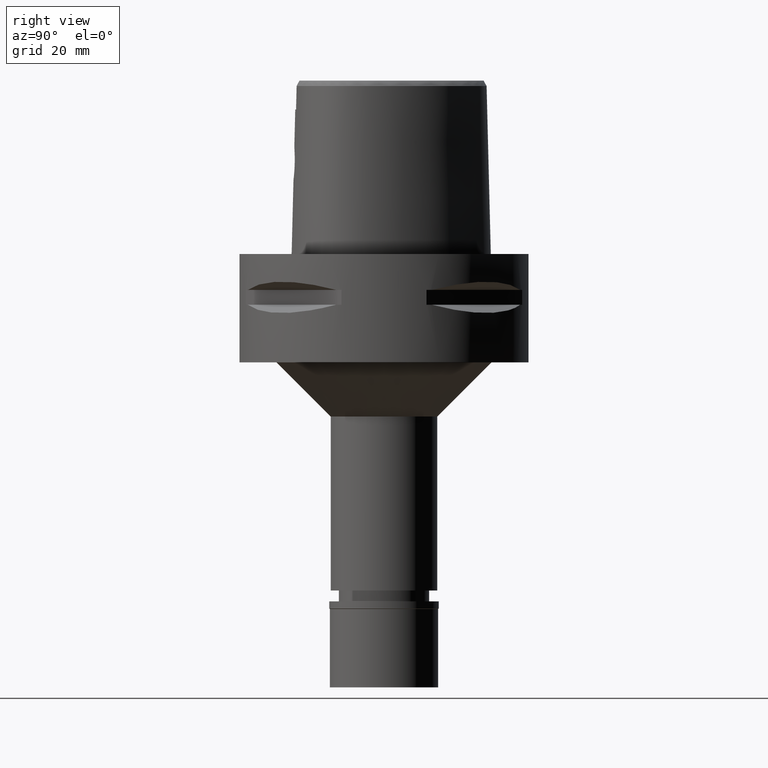
[diagram: clean part render]
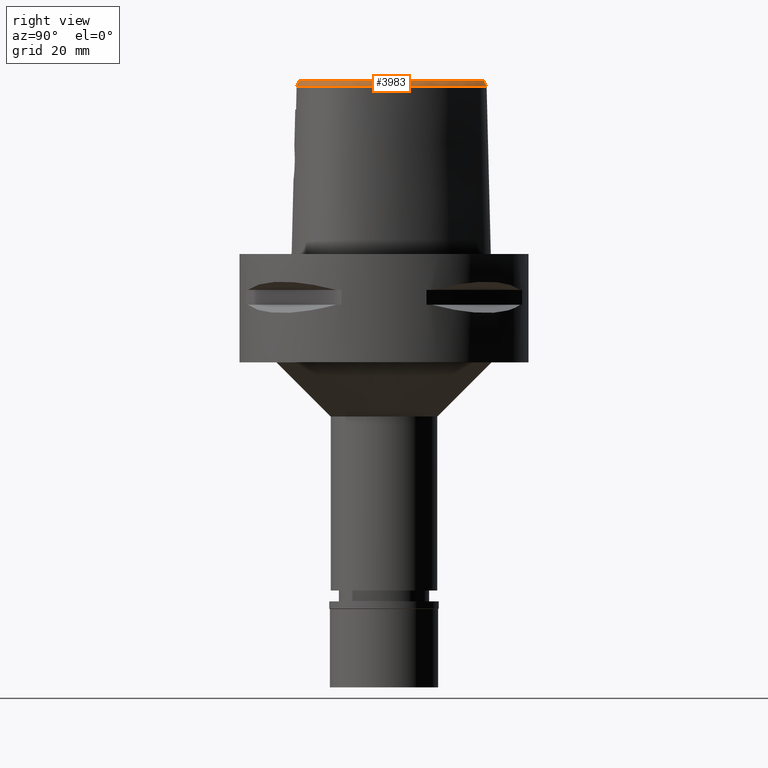
[diagram: same view with one face highlighted and labeled with its STEP entity id]
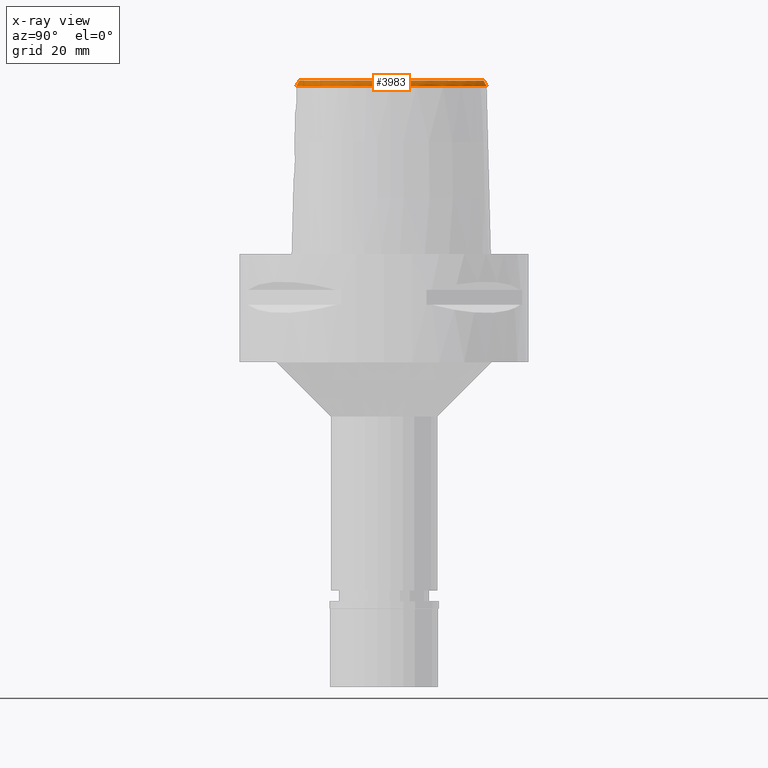
[diagram: x-ray of the same camera — body ghosted, the highlighted face saturated]
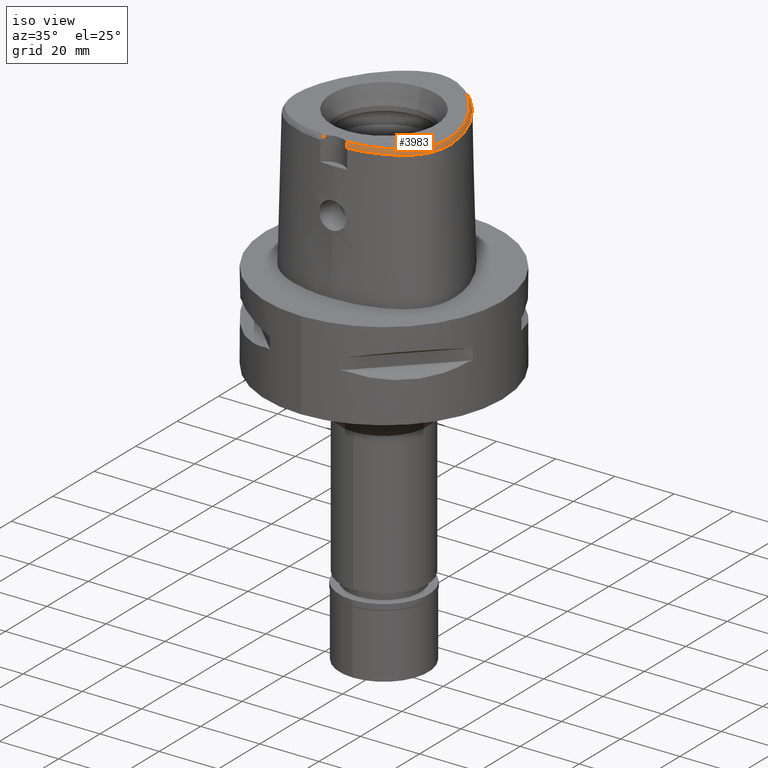
[diagram: same view with one face highlighted and labeled with its STEP entity id]
A machine part, right view. The second image highlights one B-rep face of the part: STEP entity #3983.
The next image is the same camera in x-ray: the body ghosted, the highlighted face saturated — about 0% of this face is hidden behind the body in this view.
A second angle (iso view) of the same face is appended — the face is thin or edge-on in the first view.
In plain terms, the highlighted face is a freeform B-spline surface patch.
Its self-contained STEP definition (entity closure, byte-faithful):
#6 = CARTESIAN_POINT ( 'NONE',  ( 17.04916357517999970, 17.81432664815000066, 46.94560124067000118 ) ) ;
#8 = CARTESIAN_POINT ( 'NONE',  ( 24.69258566271313171, -14.08975149522356674, 46.52069831738059946 ) ) ;
#31 = CARTESIAN_POINT ( 'NONE',  ( 4.798158824987999616, 27.69411010139999973, 46.31611650386000179 ) ) ;
#38 = CARTESIAN_POINT ( 'NONE',  ( 19.70597290391000200, -18.14721469963999922, 48.20457251342000404 ) ) ;
#67 = CARTESIAN_POINT ( 'NONE',  ( 18.00237281728000127, -19.26024203745999941, 48.20457252822000527 ) ) ;
#82 = CARTESIAN_POINT ( 'NONE',  ( 1.434828679256999973, 27.74636032488000126, 47.57508687387999657 ) ) ;
#90 = CARTESIAN_POINT ( 'NONE',  ( 18.89509812241999853, -18.70749386990999952, 48.20457245235999721 ) ) ;
#107 = CARTESIAN_POINT ( 'NONE',  ( 0.7474678804896999207, 28.51253883808000111, 46.31611580818000107 ) ) ;
#115 = CARTESIAN_POINT ( 'NONE',  ( 24.51722218023000011, -12.26769687950000076, 48.20457250191999776 ) ) ;
#138 = CARTESIAN_POINT ( 'NONE',  ( 23.90669155919999866, -13.53847843528999917, 48.20457253792000074 ) ) ;
#160 = CARTESIAN_POINT ( 'NONE',  ( 25.67350076966000216, -5.221281767241999994, 48.20457257559999675 ) ) ;
#185 = CARTESIAN_POINT ( 'NONE',  ( 25.53279090173000299, -8.304475519385999149, 48.20457254725999974 ) ) ;
#210 = CARTESIAN_POINT ( 'NONE',  ( 25.71874772741000115, 0.05820654227243999418, 46.94560192718000025 ) ) ;
#213 = CARTESIAN_POINT ( 'NONE',  ( 24.89096213678695690, -11.60991207239347034, 48.00000000000374456 ) ) ;
#240 = CARTESIAN_POINT ( 'NONE',  ( 25.35827285227000161, -10.93048610758000017, 47.57508705924000481 ) ) ;
#243 = ORIENTED_EDGE ( 'NONE', *, *, #4734, .T. ) ;
#244 = CARTESIAN_POINT ( 'NONE',  ( 2.897393261679457321, 27.25600202852620413, 48.00000000000191136 ) ) ;
#266 = CARTESIAN_POINT ( 'NONE',  ( 24.05592178790999824, 6.550852846379999761, 46.31611724407999731 ) ) ;
#268 = VERTEX_POINT ( 'NONE', #4237 ) ;
#269 = CARTESIAN_POINT ( 'NONE',  ( 25.41171405094332059, -1.468769615953199770, 48.00000000000672884 ) ) ;
#291 = CARTESIAN_POINT ( 'NONE',  ( 8.965931139553001472, 24.43079782042000048, 48.20457255846000066 ) ) ;
#298 = CARTESIAN_POINT ( 'NONE',  ( 7.493341079626000045, -23.57767691268000121, 46.94560153671000791 ) ) ;
#316 = CARTESIAN_POINT ( 'NONE',  ( 7.387810477443999879, 26.18426560694999949, 46.94560202451000208 ) ) ;
#319 = CARTESIAN_POINT ( 'NONE',  ( 5.628119991152683355, -23.25222728396649785, 48.00000000000427747 ) ) ;
#342 = CARTESIAN_POINT ( 'NONE',  ( 11.67036048918000013, 23.76609588279000107, 46.31611589140999996 ) ) ;
#346 = CARTESIAN_POINT ( 'NONE',  ( 23.08984995679805508, -16.35075897049508598, 46.52069719038879470 ) ) ;
#350 = CARTESIAN_POINT ( 'NONE',  ( 14.77663406416999869, -20.83893979300000154, 48.20457256323999928 ) ) ;
#368 = CARTESIAN_POINT ( 'NONE',  ( 15.03826900792000032, 20.65621645119999883, 46.31611973353999190 ) ) ;
#370 = CARTESIAN_POINT ( 'NONE',  ( 20.45409312013399372, -18.82869992194020980, 46.52069578164903874 ) ) ;
#392 = CARTESIAN_POINT ( 'NONE',  ( 21.53966887607000302, 9.518243842866999316, 48.20457231687999666 ) ) ;
#394 = CARTESIAN_POINT ( 'NONE',  ( 18.06021793802881703, -19.35923481219670705, 48.00000000000494538 ) ) ;
#423 = CARTESIAN_POINT ( 'NONE',  ( 25.44883761079999829, -11.80500910447000074, 46.94560173402000203 ) ) ;
#442 = CARTESIAN_POINT ( 'NONE',  ( 5.553121805623000284, 27.03637116394000017, 46.94560154056000556 ) ) ;
#448 = CARTESIAN_POINT ( 'NONE',  ( 23.85699966378000170, -14.31682839289999976, 47.57508700548000036 ) ) ;
#453 = B_SPLINE_SURFACE_WITH_KNOTS ( 'NONE', 3, 3, ( 
 ( #4668, #2751, #3170, #4336 ),
 ( #4313, #1952, #3894, #3871 ),
 ( #1900, #782, #1980, #4361 ),
 ( #2701, #2373, #2268, #2347 ),
 ( #5085, #3843, #1139, #4289 ),
 ( #4261, #758, #298, #3068 ),
 ( #1877, #3527, #4701, #3476 ),
 ( #3451, #3919, #5114, #4647 ),
 ( #3947, #3089, #3119, #1091 ),
 ( #703, #5058, #1502, #732 ),
 ( #350, #3502, #1528, #2496 ),
 ( #4072, #4409, #4023, #476 ),
 ( #2055, #3577, #2028, #3630 ),
 ( #67, #4849, #2076, #3601 ),
 ( #90, #1686, #1642, #2006 ),
 ( #38, #809, #521, #1611 ),
 ( #1665, #854, #1294, #3241 ),
 ( #4800, #2884, #3193, #3289 ),
 ( #4385, #4435, #4462, #4050 ),
 ( #4822, #2100, #1267, #2803 ),
 ( #4777, #3217, #1244, #3997 ),
 ( #500, #833, #1219, #907 ),
 ( #2824, #448, #2420, #3676 ),
 ( #138, #2442, #885, #1715 ),
 ( #2853, #3972, #2475, #3654 ),
 ( #115, #3262, #4874, #1315 ),
 ( #2903, #2399, #423, #1738 ),
 ( #620, #240, #4093, #5003 ),
 ( #570, #3389, #974, #545 ),
 ( #3308, #2564, #2514, #4148 ),
 ( #185, #2978, #3705, #3332 ),
 ( #3727, #4978, #2209, #2152 ),
 ( #592, #1819, #1762, #2131 ),
 ( #160, #4484, #1030, #4895 ),
 ( #3751, #4534, #1414, #1788 ),
 ( #4921, #3004, #1337, #1844 ),
 ( #2924, #4560, #4588, #2591 ),
 ( #2176, #2622, #210, #4504 ),
 ( #949, #4173, #2541, #4120 ),
 ( #3788, #1361, #2951, #4205 ),
 ( #3363, #4955, #1387, #650 ),
 ( #1001, #2235, #3811, #266 ),
 ( #3415, #1439, #929, #3034 ),
 ( #392, #1133, #1971, #3109 ),
 ( #3937, #4694, #5076, #4718 ),
 ( #1867, #1104, #725, #1156 ),
 ( #775, #2313, #2742, #2720 ),
 ( #1916, #5107, #3544, #2693 ),
 ( #1894, #4227, #6, #3442 ),
 ( #1081, #4306, #4330, #750 ),
 ( #2337, #3888, #4614, #368 ),
 ( #3911, #4254, #1941, #4282 ),
 ( #695, #671, #1060, #2261 ),
 ( #2365, #3836, #3518, #342 ),
 ( #1554, #3494, #4638, #3468 ),
 ( #291, #2648, #2285, #1471 ),
 ( #3138, #5031, #3060, #1517 ),
 ( #2670, #3863, #316, #5052 ),
 ( #1494, #3081, #4661, #848 ),
 ( #1749, #1236, #442, #1209 ),
 ( #3622, #4793, #876, #31 ),
 ( #4742, #825, #2436, #4376 ),
 ( #2818, #1601, #1577, #1657 ),
 ( #4815, #4134, #3233, #1181 ),
 ( #1260, #82, #3321, #4908 ),
 ( #2468, #1349, #2937, #107 ),
 ( #4044, #2555, #2844, #4522 ),
 ( #3739, #467, #2022, #3162 ),
 ( #4426, #965, #801, #3185 ) ),
 .UNSPECIFIED., .F., .F., .F.,
 ( 4, 1, 1, 1, 1, 1, 1, 1, 1, 1, 1, 1, 1, 1, 1, 1, 1, 1, 1, 1, 1, 1, 1, 1, 1, 1, 1, 1, 1, 1, 1, 1, 1, 1, 1, 1, 1, 1, 1, 1, 1, 1, 1, 1, 1, 1, 1, 1, 1, 1, 1, 1, 1, 1, 1, 1, 1, 1, 1, 1, 1, 1, 1, 1, 1, 1, 4 ),
 ( 4, 4 ),
 ( -0.006501344654136999822, 0.0000000000000000000, 0.001084806278982999904, 0.01694060300470999827, 0.03279639973041999917, 0.04865219645615000144, 0.06450799318185999887, 0.08036378990756999630, 0.09621958663328000760, 0.1120753833589999970, 0.1279311800848000058, 0.1437869768104999835, 0.1596427735361999889, 0.1754985702619000221, 0.1913543669875999997, 0.2072101637133000052, 0.2230659604390000106, 0.2389217571648000193, 0.2547775538904999970, 0.2706333506161999747, 0.2864891473419000079, 0.3023449440675999855, 0.3182007407932999632, 0.3340565375190999720, 0.3499123342448000051, 0.3657681309706000139, 0.3816239276962999916, 0.3974797244219999692, 0.4133355211477000024, 0.4291913178734000356, 0.4450471145992000443, 0.4609029113249000220, 0.4767587080505999997, 0.4926145047763000329, 0.5084703015020000105, 0.5243260982276999327, 0.5401818949534999970, 0.5560376916792000301, 0.5718934884048999523, 0.5877492851305999855, 0.6036050818563000187, 0.6194608785820000518, 0.6353166753076999740, 0.6511724720334999272, 0.6670282687592000714, 0.6828840654848999936, 0.6987398622106000268, 0.7145956589363000599, 0.7304514556619999821, 0.7463072523879000775, 0.7621630491135999996, 0.7780188458392999218, 0.7938746425650000660, 0.8097304392906999881, 0.8255862360164000213, 0.8414420327421000545, 0.8572978294679000077, 0.8731536261936000409, 0.8890094229192999631, 0.9048652196450001073, 0.9207210163707000294, 0.9365768130963999516, 0.9524326098222000159, 0.9682884065478999380, 0.9841442032736000822, 1.000000000000000000, 1.017074182962999895 ),
 ( -0.1137394721407000014, 1.113739472136000108 ),
 .UNSPECIFIED. ) ;
#467 = CARTESIAN_POINT ( 'NONE',  ( -0.5129501263582000314, 27.81361181859000098, 47.57508704165000779 ) ) ;
#476 = CARTESIAN_POINT ( 'NONE',  ( 16.39220225341000159, -21.29094406038000287, 46.31611653241999704 ) ) ;
#500 = CARTESIAN_POINT ( 'NONE',  ( 23.16879996984999934, -14.71137783307000113, 48.20457258142000256 ) ) ;
#521 = CARTESIAN_POINT ( 'NONE',  ( 20.12128096528000043, -18.71767493075000033, 46.94560183339000048 ) ) ;
#545 = CARTESIAN_POINT ( 'NONE',  ( 26.25629475779999922, -10.28319432100999897, 46.31611594629000450 ) ) ;
#570 = CARTESIAN_POINT ( 'NONE',  ( 25.22517699588999918, -10.04409467300000003, 48.20457257988999800 ) ) ;
#592 = CARTESIAN_POINT ( 'NONE',  ( 25.67589367361999919, -6.316873232622999268, 48.20457248972000031 ) ) ;
#595 = CARTESIAN_POINT ( 'NONE',  ( 8.053467330373720756, 25.13580020532488390, 48.00000000000654410 ) ) ;
#620 = CARTESIAN_POINT ( 'NONE',  ( 25.01935097818000031, -10.83239586602999971, 48.20457256838000148 ) ) ;
#623 = CARTESIAN_POINT ( 'NONE',  ( 20.74842146925280773, 11.24651447313929253, 48.00000000000832756 ) ) ;
#650 = CARTESIAN_POINT ( 'NONE',  ( 24.69942893071999990, 4.866921329550000230, 46.31611576814000131 ) ) ;
#653 = CARTESIAN_POINT ( 'NONE',  ( -2.553408000950999956E-11, 27.58331912251000162, 48.00000000000000000 ) ) ;
#671 = CARTESIAN_POINT ( 'NONE',  ( 12.30557241946000069, 22.31051728461000039, 47.57508767721000709 ) ) ;
#674 = CARTESIAN_POINT ( 'NONE',  ( 1.407937999592733247, 27.50970958195695459, 48.00000000000705569 ) ) ;
#695 = CARTESIAN_POINT ( 'NONE',  ( 12.07231099386000039, 22.04586575217000188, 48.20457227085999818 ) ) ;
#698 = CARTESIAN_POINT ( 'NONE',  ( 20.51253914624887287, -17.67119446945622130, 48.00000000000238032 ) ) ;
#703 = CARTESIAN_POINT ( 'NONE',  ( 13.50267521143999971, -21.32338404349000172, 48.20457252154999850 ) ) ;
#725 = CARTESIAN_POINT ( 'NONE',  ( 20.28819300258999903, 13.19913506558000016, 46.94560159825999790 ) ) ;
#728 = CARTESIAN_POINT ( 'NONE',  ( 6.913370730855251445, 26.74336904842661511, 46.52071437701388135 ) ) ;
#732 = CARTESIAN_POINT ( 'NONE',  ( 13.85545012789999930, -22.32119292781000297, 46.31611642651000693 ) ) ;
#750 = CARTESIAN_POINT ( 'NONE',  ( 16.18434772911999886, 19.39866950172000060, 46.31611698149000489 ) ) ;
#753 = CARTESIAN_POINT ( 'NONE',  ( 24.33934953590562955, -14.68006085516849524, 46.52069803563264827 ) ) ;
#758 = CARTESIAN_POINT ( 'NONE',  ( 7.435336445955999629, -23.22971575921000209, 47.57508705385000525 ) ) ;
#775 = CARTESIAN_POINT ( 'NONE',  ( 18.66535854282000173, 14.41973191445000069, 48.20457246338000346 ) ) ;
#778 = CARTESIAN_POINT ( 'NONE',  ( 1.375467128704438657, 28.41206022877424431, 46.52071663099749088 ) ) ;
#782 = CARTESIAN_POINT ( 'NONE',  ( 3.457983727111000327, -23.69440237479000189, 47.57508748923000041 ) ) ;
#801 = CARTESIAN_POINT ( 'NONE',  ( -0.8013942055421999777, 28.15037815490000384, 46.94560106256999887 ) ) ;
#803 = CARTESIAN_POINT ( 'NONE',  ( 3.652533226355999751, -23.43985283522000174, 48.00000000000000000 ) ) ;
#809 = CARTESIAN_POINT ( 'NONE',  ( 19.91362693460000344, -18.43244481520000022, 47.57508717341000448 ) ) ;
#825 = CARTESIAN_POINT ( 'NONE',  ( 3.745627704851999695, 27.28494237908000031, 47.57508724251999865 ) ) ;
#833 = CARTESIAN_POINT ( 'NONE',  ( 23.45636441125000005, -14.91583881258000055, 47.57508703219000523 ) ) ;
#848 = CARTESIAN_POINT ( 'NONE',  ( 6.602491345825000302, 26.96636912006999864, 46.31611652833999671 ) ) ;
#854 = CARTESIAN_POINT ( 'NONE',  ( 20.66248591877999985, -17.85622196735000244, 47.57508702705000303 ) ) ;
#876 = CARTESIAN_POINT ( 'NONE',  ( 4.683445370539000230, 27.36045753020000149, 46.94560183995999836 ) ) ;
#885 = CARTESIAN_POINT ( 'NONE',  ( 24.52450196722999820, -13.87953672653000048, 46.94560170716999892 ) ) ;
#907 = CARTESIAN_POINT ( 'NONE',  ( 24.03149329404000056, -15.32476077159000027, 46.31611593373000346 ) ) ;
#929 = CARTESIAN_POINT ( 'NONE',  ( 22.99413781773000309, 8.122921491395000970, 46.94560314681999813 ) ) ;
#949 = CARTESIAN_POINT ( 'NONE',  ( 24.67695737671999723, 1.377789863890000133, 48.20457255995000168 ) ) ;
#953 = CARTESIAN_POINT ( 'NONE',  ( 4.210173909861000041, -23.91959868974999992, 47.06298586891000468 ) ) ;
#965 = CARTESIAN_POINT ( 'NONE',  ( -0.7800175696156000926, 27.79839443670000065, 47.57508686278000454 ) ) ;
#974 = CARTESIAN_POINT ( 'NONE',  ( 25.91258883716000128, -10.20349443833999992, 46.94560149081999612 ) ) ;
#977 = CARTESIAN_POINT ( 'NONE',  ( 25.33687583872243465, -10.06999584063707331, 48.00000000000903100 ) ) ;
#1001 = CARTESIAN_POINT ( 'NONE',  ( 23.07569987906000009, 6.151944805619999457, 48.20457242221999650 ) ) ;
#1004 = CARTESIAN_POINT ( 'NONE',  ( 3.680297990135465547, 27.05591354499951251, 48.00000000000687805 ) ) ;
#1030 = CARTESIAN_POINT ( 'NONE',  ( 26.37882786004000124, -5.201918279768999120, 46.94560151296000328 ) ) ;
#1033 = CARTESIAN_POINT ( 'NONE',  ( 25.14129527416508836, -0.06715740301648846777, 48.00000000000084555 ) ) ;
#1060 = CARTESIAN_POINT ( 'NONE',  ( 12.53883384505999921, 22.57516881705999978, 46.94560308355000444 ) ) ;
#1063 = CARTESIAN_POINT ( 'NONE',  ( 25.79052179444656545, -6.319355031380045951, 48.00000000001260503 ) ) ;
#1081 = CARTESIAN_POINT ( 'NONE',  ( 15.38670891155999954, 18.70314153055999995, 48.20457245413000180 ) ) ;
#1085 = CARTESIAN_POINT ( 'NONE',  ( 13.63304938779872444, 22.11238814013903209, 46.52071155953436943 ) ) ;
#1091 = CARTESIAN_POINT ( 'NONE',  ( 12.43120337893000027, -22.79002302127999968, 46.31611646387000292 ) ) ;
#1104 = CARTESIAN_POINT ( 'NONE',  ( 19.98758343468000120, 13.01455470115999979, 47.57508707865000730 ) ) ;
#1107 = CARTESIAN_POINT ( 'NONE',  ( 5.530043876419626692, 27.35846726636328086, 46.52071494050980505 ) ) ;
#1133 = CARTESIAN_POINT ( 'NONE',  ( 21.85427932886999969, 9.677796946022999336, 47.57508758165000273 ) ) ;
#1135 = CARTESIAN_POINT ( 'NONE',  ( 25.61240997289147714, -12.23358473966698057, 46.52069916262445304 ) ) ;
#1139 = CARTESIAN_POINT ( 'NONE',  ( 5.700734570218000563, -23.83862719801999575, 46.94560247684000132 ) ) ;
#1156 = CARTESIAN_POINT ( 'NONE',  ( 20.58880257050999774, 13.38371542998999963, 46.31611611786999561 ) ) ;
#1181 = CARTESIAN_POINT ( 'NONE',  ( 2.299157368876999730, 28.33646557041000236, 46.31611556931999729 ) ) ;
#1209 = CARTESIAN_POINT ( 'NONE',  ( 5.685144185042999787, 27.36355509981000012, 46.31611602571999953 ) ) ;
#1219 = CARTESIAN_POINT ( 'NONE',  ( 23.74392885263999986, -15.12029979208999997, 46.94560148296000079 ) ) ;
#1236 = CARTESIAN_POINT ( 'NONE',  ( 5.421099426202999894, 26.70918722807000378, 47.57508705539999738 ) ) ;
#1244 = CARTESIAN_POINT ( 'NONE',  ( 23.28354301335000187, -15.73154432075999765, 46.94560190879000316 ) ) ;
#1260 = CARTESIAN_POINT ( 'NONE',  ( 1.394991593689999920, 27.39577506586000055, 48.20457265763000265 ) ) ;
#1267 = CARTESIAN_POINT ( 'NONE',  ( 22.77178149685999742, -16.33791197645000182, 46.94560163932999330 ) ) ;
#1294 = CARTESIAN_POINT ( 'NONE',  ( 20.88462394140000100, -18.13033018468999913, 46.94560147023000241 ) ) ;
#1315 = CARTESIAN_POINT ( 'NONE',  ( 25.49552858492999974, -12.67190342521000090, 46.31611658807000254 ) ) ;
#1337 = CARTESIAN_POINT ( 'NONE',  ( 26.19165255976999873, -2.721967770450000046, 46.94560168087999585 ) ) ;
#1349 = CARTESIAN_POINT ( 'NONE',  ( 0.7073006253033999879, 27.80798995541999830, 47.57508700050000527 ) ) ;
#1361 = CARTESIAN_POINT ( 'NONE',  ( 24.57317602294000025, 3.019049948848000042, 47.57508706640000185 ) ) ;
#1365 = CARTESIAN_POINT ( 'NONE',  ( 23.18188527997715909, 6.195157684106001206, 48.00000000000522249 ) ) ;
#1387 = CARTESIAN_POINT ( 'NONE',  ( 24.36736919082000341, 4.747847753825999995, 46.94560137927000198 ) ) ;
#1410 = EDGE_LOOP ( 'NONE', ( #1573, #243, #3328, #2050 ) ) ;
#1414 = CARTESIAN_POINT ( 'NONE',  ( 26.31770610702000113, -3.999574590185999590, 46.94560181657000442 ) ) ;
#1439 = CARTESIAN_POINT ( 'NONE',  ( 22.67322215884000158, 7.976457385762999230, 47.57508770270999321 ) ) ;
#1471 = CARTESIAN_POINT ( 'NONE',  ( 9.548762007482000769, 25.31424039669999715, 46.31611612267999334 ) ) ;
#1475 = CARTESIAN_POINT ( 'NONE',  ( 16.39076485917107462, -21.20751266143193803, 46.52069409116131027 ) ) ;
#1494 = CARTESIAN_POINT ( 'NONE',  ( 6.156491230117000057, 26.00649475883999884, 48.20457250917999659 ) ) ;
#1496 = CARTESIAN_POINT ( 'NONE',  ( 4.358863301033615301, -23.38302754646278458, 48.00000000000877520 ) ) ;
#1502 = CARTESIAN_POINT ( 'NONE',  ( 13.73785848908000062, -21.98858996637000018, 46.94560179151999790 ) ) ;
#1517 = CARTESIAN_POINT ( 'NONE',  ( 8.534436524851001238, 25.94778314654000084, 46.31611617584999863 ) ) ;
#1520 = CARTESIAN_POINT ( 'NONE',  ( 17.07549476911972874, -19.90378693825130796, 48.00000000000854783 ) ) ;
#1528 = CARTESIAN_POINT ( 'NONE',  ( 15.04202602459000104, -21.49269192482999813, 46.94560157662000677 ) ) ;
#1554 = CARTESIAN_POINT ( 'NONE',  ( 9.971303239794002238, 23.73383443285000283, 48.20457258673000212 ) ) ;
#1556 = CARTESIAN_POINT ( 'NONE',  ( 11.70978320534820583, -23.05272019184735299, 46.52069240067358891 ) ) ;
#1573 = ORIENTED_EDGE ( 'NONE', *, *, #4669, .F. ) ;
#1577 = CARTESIAN_POINT ( 'NONE',  ( 3.028518837748999992, 27.83227214769000213, 46.94560179456999549 ) ) ;
#1601 = CARTESIAN_POINT ( 'NONE',  ( 2.950235670678000410, 27.48823362089000000, 47.57508715776000230 ) ) ;
#1604 = LINE ( 'NONE', #3571, #3042 ) ;
#1611 = CARTESIAN_POINT ( 'NONE',  ( 20.32893499595999742, -19.00290504631000132, 46.31611649338000092 ) ) ;
#1642 = CARTESIAN_POINT ( 'NONE',  ( 19.28093429907000100, -19.29827172965000059, 46.94560214811999543 ) ) ;
#1657 = CARTESIAN_POINT ( 'NONE',  ( 3.106802004821000107, 28.17631067447999982, 46.31611643139000734 ) ) ;
#1665 = CARTESIAN_POINT ( 'NONE',  ( 20.44034789614999781, -17.58211375000999865, 48.20457258388000099 ) ) ;
#1686 = CARTESIAN_POINT ( 'NONE',  ( 19.08801621074999844, -19.00288279978000006, 47.57508730023999988 ) ) ;
#1715 = CARTESIAN_POINT ( 'NONE',  ( 24.83340717124000108, -14.05006587213999936, 46.31611629180000023 ) ) ;
#1738 = CARTESIAN_POINT ( 'NONE',  ( 25.78189436637000043, -11.92148381530999934, 46.31611633468000377 ) ) ;
#1740 = CARTESIAN_POINT ( 'NONE',  ( 0.6937438505403186184, 27.57019898700738025, 48.00000000000044764 ) ) ;
#1749 = CARTESIAN_POINT ( 'NONE',  ( 5.289077046783000391, 26.38200329220000029, 48.20457257024000342 ) ) ;
#1762 = CARTESIAN_POINT ( 'NONE',  ( 26.38133274173999965, -6.332146603500999227, 46.94560195559999727 ) ) ;
#1765 = CARTESIAN_POINT ( 'NONE',  ( 12.14811716929370178, 22.13187320258928992, 47.99999999999956657 ) ) ;
#1788 = CARTESIAN_POINT ( 'NONE',  ( 26.66949162203000157, -3.972965519598000039, 46.31611646651000314 ) ) ;
#1792 = CARTESIAN_POINT ( 'NONE',  ( 10.03889926273806132, 23.82643791975583270, 48.00000000000843414 ) ) ;
#1819 = CARTESIAN_POINT ( 'NONE',  ( 26.02861320767999942, -6.324509918061999691, 47.57508722265999523 ) ) ;
#1822 = CARTESIAN_POINT ( 'NONE',  ( 6.204805495149396499, 26.11047595223643825, 48.00000000000964917 ) ) ;
#1844 = CARTESIAN_POINT ( 'NONE',  ( 26.54179277776000134, -2.678848971224000231, 46.31611624981000119 ) ) ;
#1847 = CARTESIAN_POINT ( 'NONE',  ( 25.60516200877880877, -2.794192459352902169, 48.00000000000233058 ) ) ;
#1867 = CARTESIAN_POINT ( 'NONE',  ( 19.68697386676999983, 12.82997433675000032, 48.20457255904000249 ) ) ;
#1877 = CARTESIAN_POINT ( 'NONE',  ( 9.056020099035999138, -22.56429981899000126, 48.20457256259999923 ) ) ;
#1894 = CARTESIAN_POINT ( 'NONE',  ( 16.49822700981999901, 17.37360820330000166, 48.20457262843000024 ) ) ;
#1896 = CARTESIAN_POINT ( 'NONE',  ( 23.26225374360242171, -14.77782433120921723, 48.00000000001193001 ) ) ;
#1900 = CARTESIAN_POINT ( 'NONE',  ( 3.431826094172000019, -23.34270943602999893, 48.20457236136999768 ) ) ;
#1916 = CARTESIAN_POINT ( 'NONE',  ( 17.59609160438999709, 15.94177546148000246, 48.20457250302000318 ) ) ;
#1918 = CARTESIAN_POINT ( 'NONE',  ( 21.61408639849937074, -17.89738970854583400, 46.52069634514493401 ) ) ;
#1941 = CARTESIAN_POINT ( 'NONE',  ( 13.65274169559999962, 21.54963553851000313, 46.94560419196000822 ) ) ;
#1946 = CARTESIAN_POINT ( 'NONE',  ( 17.84219066873637161, -20.48406917474921940, 46.52069465465721976 ) ) ;
#1952 = CARTESIAN_POINT ( 'NONE',  ( 3.157592012670999981, -23.71561680720999732, 47.57508746429000013 ) ) ;
#1971 = CARTESIAN_POINT ( 'NONE',  ( 22.16888978166999991, 9.837350049179999445, 46.94560284642999903 ) ) ;
#1980 = CARTESIAN_POINT ( 'NONE',  ( 3.484141360049999747, -24.04609531355000129, 46.94560261707999160 ) ) ;
#2006 = CARTESIAN_POINT ( 'NONE',  ( 19.47385238739000002, -19.59366065952000113, 46.31611699600000520 ) ) ;
#2022 = CARTESIAN_POINT ( 'NONE',  ( -0.5273015902232000007, 28.16604729855000144, 46.94560150644000629 ) ) ;
#2028 = CARTESIAN_POINT ( 'NONE',  ( 17.34839978895999835, -20.42793276341999942, 46.94560158268000549 ) ) ;
#2050 = ORIENTED_EDGE ( 'NONE', *, *, #2863, .F. ) ;
#2055 = CARTESIAN_POINT ( 'NONE',  ( 17.02254620793999962, -19.80209306941999969, 48.20457256207000540 ) ) ;
#2076 = CARTESIAN_POINT ( 'NONE',  ( 18.35836057825000012, -19.86945878338000426, 46.94560175710999772 ) ) ;
#2100 = CARTESIAN_POINT ( 'NONE',  ( 22.50863457768999965, -16.10286784346000033, 47.57508709520000423 ) ) ;
#2131 = CARTESIAN_POINT ( 'NONE',  ( 26.73405227581000076, -6.339783288939999650, 46.31611668853999930 ) ) ;
#2152 = CARTESIAN_POINT ( 'NONE',  ( 26.68289160800999937, -7.419753097561999411, 46.31611694323000705 ) ) ;
#2154 = CARTESIAN_POINT ( 'NONE',  ( 19.78466709480127861, 12.88995995781944437, 48.00000000000381561 ) ) ;
#2176 = CARTESIAN_POINT ( 'NONE',  ( 25.02925894530999784, -0.09148029942473000220, 48.20457249521999898 ) ) ;
#2209 = CARTESIAN_POINT ( 'NONE',  ( 26.33099044349999929, -7.394474337196999869, 46.94560211506999536 ) ) ;
#2211 = VERTEX_POINT ( 'NONE', #4722 ) ;
#2212 = CARTESIAN_POINT ( 'NONE',  ( 23.81116373424196908, 4.548397580874311785, 48.00000000000544276 ) ) ;
#2235 = CARTESIAN_POINT ( 'NONE',  ( 23.40244051534999770, 6.284914152540000742, 47.57508736283999440 ) ) ;
#2239 = CARTESIAN_POINT ( 'NONE',  ( 2.140583849880869138, 27.40603513869672270, 48.00000000000971312 ) ) ;
#2261 = CARTESIAN_POINT ( 'NONE',  ( 12.77209527065000039, 22.83982034950000184, 46.31611848989000180 ) ) ;
#2265 = CARTESIAN_POINT ( 'NONE',  ( 4.386240357622000374, -24.10396189836999881, 46.70612262619999910 ) ) ;
#2268 = CARTESIAN_POINT ( 'NONE',  ( 4.414652812353000222, -23.97115471893000205, 46.94560270323000140 ) ) ;
#2285 = CARTESIAN_POINT ( 'NONE',  ( 9.354485051504999760, 25.01975953793999707, 46.94560160126999904 ) ) ;
#2288 = CARTESIAN_POINT ( 'NONE',  ( 23.65541542675278919, -14.18997106324255242, 48.00000000001264056 ) ) ;
#2313 = CARTESIAN_POINT ( 'NONE',  ( 18.95817568999999736, 14.61644398289999991, 47.57508727736999532 ) ) ;
#2315 = CARTESIAN_POINT ( 'NONE',  ( 26.30769162470503630, -1.593520748818529675, 46.52070310709578393 ) ) ;
#2337 = CARTESIAN_POINT ( 'NONE',  ( 14.27124086301000006, 19.92705604533999875, 48.20457211977999634 ) ) ;
#2341 = CARTESIAN_POINT ( 'NONE',  ( 12.15683615294270759, -21.88711351950746575, 48.00000000000753175 ) ) ;
#2347 = CARTESIAN_POINT ( 'NONE',  ( 4.447959660386000991, -24.32227201488999668, 46.31611788251999684 ) ) ;
#2365 = CARTESIAN_POINT ( 'NONE',  ( 11.00736671233000230, 22.94115089194999868, 48.20457258655000743 ) ) ;
#2368 = CARTESIAN_POINT ( 'NONE',  ( 10.99875819582716296, 24.38035098655841537, 46.52071268652616709 ) ) ;
#2373 = CARTESIAN_POINT ( 'NONE',  ( 4.381345964318999364, -23.62003742295999587, 47.57508752395000329 ) ) ;
#2399 = CARTESIAN_POINT ( 'NONE',  ( 25.11578085524000059, -11.68853439361999946, 47.57508713336000739 ) ) ;
#2420 = CARTESIAN_POINT ( 'NONE',  ( 24.15563579346000012, -14.50476065640000023, 46.94560141668999620 ) ) ;
#2436 = CARTESIAN_POINT ( 'NONE',  ( 3.842410139053000329, 27.62423619295000066, 46.94560200488999868 ) ) ;
#2442 = CARTESIAN_POINT ( 'NONE',  ( 24.21559676321999888, -13.70900758090999894, 47.57508712255000205 ) ) ;
#2468 = CARTESIAN_POINT ( 'NONE',  ( 0.6872169977101999505, 27.45571551408999866, 48.20457259666000027 ) ) ;
#2475 = CARTESIAN_POINT ( 'NONE',  ( 24.86069334897999994, -13.22802894414000185, 46.94560125596999711 ) ) ;
#2496 = CARTESIAN_POINT ( 'NONE',  ( 15.17472200480000133, -21.81956799073999775, 46.31611608329999541 ) ) ;
#2514 = CARTESIAN_POINT ( 'NONE',  ( 26.09234529813999970, -9.325605737809999241, 46.94560145446000377 ) ) ;
#2532 = B_SPLINE_CURVE_WITH_KNOTS ( 'NONE', 3,
 ( #4509, #2265, #953, #3311, #2595, #4123 ),
 .UNSPECIFIED., .F., .F.,
 ( 4, 1, 1, 4 ),
 ( 0.0000000000000000000, 0.3333333333333000081, 0.6666666666667000474, 1.000000000000000000 ),
 .UNSPECIFIED. ) ;
#2541 = CARTESIAN_POINT ( 'NONE',  ( 25.35913628756000193, 1.557848069488000142, 46.94560159354000461 ) ) ;
#2543 = CARTESIAN_POINT ( 'NONE',  ( 7.112111422624590062, 25.66156608519615645, 48.00000000000535039 ) ) ;
#2555 = CARTESIAN_POINT ( 'NONE',  ( -0.01606859127962999984, 27.82857222166999733, 47.57508715113000619 ) ) ;
#2564 = CARTESIAN_POINT ( 'NONE',  ( 25.74490580895999869, -9.264223574157000485, 47.57508702069999629 ) ) ;
#2567 = CARTESIAN_POINT ( 'NONE',  ( 5.331982176209119295, 26.48833275828234335, 48.00000000000812150 ) ) ;
#2591 = CARTESIAN_POINT ( 'NONE',  ( 26.34201765144999996, -1.310370194217000073, 46.31611621090000597 ) ) ;
#2594 = CARTESIAN_POINT ( 'NONE',  ( 17.68852893097970025, 16.00958332232075776, 48.00000000000450484 ) ) ;
#2595 = CARTESIAN_POINT ( 'NONE',  ( 3.747963186536000357, -23.51307769325000407, 47.85626848971000413 ) ) ;
#2622 = CARTESIAN_POINT ( 'NONE',  ( 25.37400333635999772, -0.01663687857614000107, 47.57508721119999962 ) ) ;
#2648 = CARTESIAN_POINT ( 'NONE',  ( 9.160208095528998840, 24.72527867918000055, 47.57508707987000207 ) ) ;
#2651 = CARTESIAN_POINT ( 'NONE',  ( 25.64658655008158661, -8.318518488027677904, 48.00000000001131184 ) ) ;
#2662 = CARTESIAN_POINT ( 'NONE',  ( 4.472216720976999405, -24.20009030094000124, 46.52069014668999358 ) ) ;
#2670 = CARTESIAN_POINT ( 'NONE',  ( 7.058620767598000612, 25.56015282565999769, 48.20457247633999742 ) ) ;
#2693 = CARTESIAN_POINT ( 'NONE',  ( 18.44940187057000003, 16.56772545285000220, 46.31611657898000090 ) ) ;
#2695 = CARTESIAN_POINT ( 'NONE',  ( 24.48700992950436017, 6.834036305494961105, 46.52070592457532427 ) ) ;
#2701 = CARTESIAN_POINT ( 'NONE',  ( 4.348039116286000372, -23.26892012699999768, 48.20457234465999363 ) ) ;
#2720 = CARTESIAN_POINT ( 'NONE',  ( 19.54380998434000105, 15.00986811978999924, 46.31611690537000214 ) ) ;
#2722 = CARTESIAN_POINT ( 'NONE',  ( 18.95779336836812590, -18.80349047535517926, 48.00000000000623146 ) ) ;
#2742 = CARTESIAN_POINT ( 'NONE',  ( 19.25099283717000276, 14.81315605134999913, 46.94560209137000584 ) ) ;
#2751 = CARTESIAN_POINT ( 'NONE',  ( 2.899248309315999972, -23.73167216722999839, 47.57508743628000047 ) ) ;
#2770 = CARTESIAN_POINT ( 'NONE',  ( 20.76159157987331128, 13.99289103072417362, 46.52070817855894802 ) ) ;
#2776 = FACE_OUTER_BOUND ( 'NONE', #1410, .T. ) ;
#2803 = CARTESIAN_POINT ( 'NONE',  ( 23.03492841603000230, -16.57295610944000330, 46.31611618346000370 ) ) ;
#2818 = CARTESIAN_POINT ( 'NONE',  ( 2.871952503605999851, 27.14419509408999787, 48.20457252095000200 ) ) ;
#2824 = CARTESIAN_POINT ( 'NONE',  ( 23.55836353409999973, -14.12889612939999928, 48.20457259428000185 ) ) ;
#2844 = CARTESIAN_POINT ( 'NONE',  ( -0.01660927466740000011, 28.18143624332000030, 46.94560177810999591 ) ) ;
#2853 = CARTESIAN_POINT ( 'NONE',  ( 24.22459461763000022, -12.92245888910999874, 48.20457262546000266 ) ) ;
#2863 = EDGE_CURVE ( 'NONE', #3158, #2211, #2532, .T. ) ;
#2884 = CARTESIAN_POINT ( 'NONE',  ( 21.34094190743000041, -17.27538434271000156, 47.57508702849000315 ) ) ;
#2903 = CARTESIAN_POINT ( 'NONE',  ( 24.78272409967000200, -11.57205968278000086, 48.20457253270000564 ) ) ;
#2924 = CARTESIAN_POINT ( 'NONE',  ( 25.29869284428000142, -1.488013327113000051, 48.20457254773999978 ) ) ;
#2926 = CARTESIAN_POINT ( 'NONE',  ( 21.64191216433289355, 9.570096010441359269, 48.00000000000904521 ) ) ;
#2937 = CARTESIAN_POINT ( 'NONE',  ( 0.7273842528966000254, 28.16026439675000148, 46.94560140434000317 ) ) ;
#2951 = CARTESIAN_POINT ( 'NONE',  ( 24.91002609343999552, 3.123818785267999942, 46.94560156786000249 ) ) ;
#2954 = CARTESIAN_POINT ( 'NONE',  ( 25.78811069501298547, -5.218135357747694769, 48.00000000001238476 ) ) ;
#2978 = CARTESIAN_POINT ( 'NONE',  ( 25.88294885402999768, -8.347686812743999596, 47.57508710314000666 ) ) ;
#3004 = CARTESIAN_POINT ( 'NONE',  ( 25.84151234177999967, -2.765086569676999950, 47.57508711194000028 ) ) ;
#3034 = CARTESIAN_POINT ( 'NONE',  ( 23.31505347661999750, 8.269385597027000046, 46.31611859093000305 ) ) ;
#3042 = VECTOR ( 'NONE', #3968, 1000.000000000000114 ) ;
#3060 = CARTESIAN_POINT ( 'NONE',  ( 8.354636048316001151, 25.64423996446999965, 46.94560163456999646 ) ) ;
#3068 = CARTESIAN_POINT ( 'NONE',  ( 7.551345713294999484, -23.92563806614999677, 46.31611601956999635 ) ) ;
#3081 = CARTESIAN_POINT ( 'NONE',  ( 6.305157935353000731, 26.32645287924999877, 47.57508718223000699 ) ) ;
#3084 = CARTESIAN_POINT ( 'NONE',  ( 21.78596494080932189, -16.52262878099899979, 47.99999999999971578 ) ) ;
#3089 = CARTESIAN_POINT ( 'NONE',  ( 12.22607024963999933, -22.11495459464999769, 47.57508716596000653 ) ) ;
#3109 = CARTESIAN_POINT ( 'NONE',  ( 22.48350023445999923, 9.996903152335999465, 46.31611811120999533 ) ) ;
#3112 = CARTESIAN_POINT ( 'NONE',  ( 10.66892483387088753, -22.30459704282201372, 48.00000000000893152 ) ) ;
#3119 = CARTESIAN_POINT ( 'NONE',  ( 12.32863681427999936, -22.45248880796999913, 46.94560181492000339 ) ) ;
#3138 = CARTESIAN_POINT ( 'NONE',  ( 7.995035095243999912, 25.03715360033000081, 48.20457255200000191 ) ) ;
#3141 = CARTESIAN_POINT ( 'NONE',  ( 8.153873202538584053, -23.84765792154007968, 46.52069127368181967 ) ) ;
#3153 = B_SPLINE_CURVE_WITH_KNOTS ( 'NONE', 3,
 ( #5034, #778, #4309, #1107, #728, #2368, #1085, #2770, #2695, #2315, #3914, #3940, #3521, #4354, #1135, #8, #753, #3890, #346, #1918, #370, #1946, #1475, #1556, #3141, #4720 ),
 .UNSPECIFIED., .F., .F.,
 ( 4, 2, 2, 2, 2, 2, 2, 2, 2, 2, 2, 2, 4 ),
 ( 0.0000000000000000000, 0.06250000000000002776, 0.1250000000000000555, 0.2500000000000001665, 0.5000000000000004441, 0.5625000000000004441, 0.6250000000000005551, 0.6875000000000005551, 0.7187500000000005551, 0.7500000000000005551, 0.8125000000000004441, 0.8750000000000004441, 1.000000000000000000 ),
 .UNSPECIFIED. ) ;
#3158 = VERTEX_POINT ( 'NONE', #2662 ) ;
#3162 = CARTESIAN_POINT ( 'NONE',  ( -0.5416530540881999700, 28.51848277851000191, 46.31611597123000479 ) ) ;
#3170 = CARTESIAN_POINT ( 'NONE',  ( 2.921121414422000129, -24.08365079997999914, 46.94560248567999849 ) ) ;
#3185 = CARTESIAN_POINT ( 'NONE',  ( -0.8227708414688000849, 28.50236187309999991, 46.31611526236999765 ) ) ;
#3193 = CARTESIAN_POINT ( 'NONE',  ( 21.57721073630999697, -17.53741790257000233, 46.94560147380000359 ) ) ;
#3217 = CARTESIAN_POINT ( 'NONE',  ( 23.00783203812999744, -15.51136542147999897, 47.57508720378999811 ) ) ;
#3233 = CARTESIAN_POINT ( 'NONE',  ( 2.239877908551999752, 27.98864322144000027, 46.94560125478000145 ) ) ;
#3241 = CARTESIAN_POINT ( 'NONE',  ( 21.10676196402000215, -18.40443840203000292, 46.31611591340000444 ) ) ;
#3262 = CARTESIAN_POINT ( 'NONE',  ( 24.84332431513000117, -12.40243239473999992, 47.57508719730000735 ) ) ;
#3289 = CARTESIAN_POINT ( 'NONE',  ( 21.81347956520000153, -17.79945146244000043, 46.31611591909999959 ) ) ;
#3308 = CARTESIAN_POINT ( 'NONE',  ( 25.39746631979000213, -9.202841410503999953, 48.20457258695000036 ) ) ;
#3310 = CARTESIAN_POINT ( 'NONE',  ( 4.491298471527053415, 26.80158405532170107, 48.00000000000603961 ) ) ;
#3311 = CARTESIAN_POINT ( 'NONE',  ( 3.936544694669000588, -23.66691452749999769, 47.55502297321000071 ) ) ;
#3321 = CARTESIAN_POINT ( 'NONE',  ( 1.474665764824999892, 28.09694558391000285, 46.94560109014000204 ) ) ;
#3328 = ORIENTED_EDGE ( 'NONE', *, *, #4644, .T. ) ;
#3332 = CARTESIAN_POINT ( 'NONE',  ( 26.58326475863999860, -8.434109399460000489, 46.31611621492000097 ) ) ;
#3335 = CARTESIAN_POINT ( 'NONE',  ( 13.24267791555207907, 21.12418368643237798, 48.00000000000108002 ) ) ;
#3363 = CARTESIAN_POINT ( 'NONE',  ( 23.70324971103000067, 4.509700602376000234, 48.20457260153000334 ) ) ;
#3367 = CARTESIAN_POINT ( 'NONE',  ( 14.35433142683490360, 20.00604447574415801, 48.00000000000518696 ) ) ;
#3389 = CARTESIAN_POINT ( 'NONE',  ( 25.56888291651999978, -10.12379455566999908, 47.57508703535999928 ) ) ;
#3415 = CARTESIAN_POINT ( 'NONE',  ( 22.35230649995000007, 7.829993280131999356, 48.20457225858999806 ) ) ;
#3418 = CARTESIAN_POINT ( 'NONE',  ( 25.72845965679556457, -4.044145215521316672, 48.00000000000894573 ) ) ;
#3442 = CARTESIAN_POINT ( 'NONE',  ( 17.32463185786000182, 18.03468587058000239, 46.31611554679000164 ) ) ;
#3451 = CARTESIAN_POINT ( 'NONE',  ( 10.64045322618000000, -22.19354437125999979, 48.20457256315000194 ) ) ;
#3468 = CARTESIAN_POINT ( 'NONE',  ( 10.59529770674000027, 24.58867856317999667, 46.31611588998000428 ) ) ;
#3472 = CARTESIAN_POINT ( 'NONE',  ( 21.18145661121310042, -17.09850743469321444, 48.00000000000459721 ) ) ;
#3476 = CARTESIAN_POINT ( 'NONE',  ( 9.274308575736000648, -23.59983986469000072, 46.31611608864999141 ) ) ;
#3494 = CARTESIAN_POINT ( 'NONE',  ( 10.17930139543999779, 24.01878247630000018, 47.57508702114999721 ) ) ;
#3497 = CARTESIAN_POINT ( 'NONE',  ( 24.00708073425547440, -13.59389763842732357, 48.00000000001393374 ) ) ;
#3502 = CARTESIAN_POINT ( 'NONE',  ( 14.90933004437999898, -21.16581585891999850, 47.57508706992999947 ) ) ;
#3518 = CARTESIAN_POINT ( 'NONE',  ( 11.44936256355999937, 23.49111421916999731, 46.94560145646000393 ) ) ;
#3521 = CARTESIAN_POINT ( 'NONE',  ( 26.56868348264246649, -7.988862950299448151, 46.52070085311216019 ) ) ;
#3527 = CARTESIAN_POINT ( 'NONE',  ( 9.128782924602999671, -22.90947983423000167, 47.57508707128000225 ) ) ;
#3544 = CARTESIAN_POINT ( 'NONE',  ( 18.16496511517999934, 16.35907545573000021, 46.94560188699999514 ) ) ;
#3547 = CARTESIAN_POINT ( 'NONE',  ( 24.32795549673475222, -12.97211154200516070, 48.00000000001304556 ) ) ;
#3571 = CARTESIAN_POINT ( 'NONE',  ( -1.250588132217000225E-11, 28.41206021534999593, 46.52071719450999154 ) ) ;
#3577 = CARTESIAN_POINT ( 'NONE',  ( 17.18547299844999898, -20.11501291641999956, 47.57508707237000323 ) ) ;
#3601 = CARTESIAN_POINT ( 'NONE',  ( 18.53635445873999998, -20.17406715634000136, 46.31611637155999972 ) ) ;
#3622 = CARTESIAN_POINT ( 'NONE',  ( 4.454018461639999593, 26.69315238779999788, 48.20457251215000127 ) ) ;
#3630 = CARTESIAN_POINT ( 'NONE',  ( 17.51132657947000126, -20.74085261040999839, 46.31611609298999355 ) ) ;
#3654 = CARTESIAN_POINT ( 'NONE',  ( 25.17874271465999669, -13.38081397166000031, 46.31611557123000011 ) ) ;
#3676 = CARTESIAN_POINT ( 'NONE',  ( 24.45427192314000209, -14.69269291990999982, 46.31611582789000181 ) ) ;
#3705 = CARTESIAN_POINT ( 'NONE',  ( 26.23310680632999947, -8.390898106102001819, 46.94560165903000382 ) ) ;
#3727 = CARTESIAN_POINT ( 'NONE',  ( 25.62718811446000089, -7.343916816467999986, 48.20457245877000219 ) ) ;
#3739 = CARTESIAN_POINT ( 'NONE',  ( -0.4985986624932000066, 27.46117633863000052, 48.20457257685999508 ) ) ;
#3751 = CARTESIAN_POINT ( 'NONE',  ( 25.61413507698999936, -4.052792731362999668, 48.20457251668999987 ) ) ;
#3755 = CARTESIAN_POINT ( 'NONE',  ( 15.47311546589478404, 18.77848662925439527, 48.00000000001189449 ) ) ;
#3788 = CARTESIAN_POINT ( 'NONE',  ( 24.23632595244000143, 2.914281112427000053, 48.20457256494999854 ) ) ;
#3791 = CARTESIAN_POINT ( 'NONE',  ( 24.34579675531063359, 2.948329282943318752, 48.00000000001242739 ) ) ;
#3811 = CARTESIAN_POINT ( 'NONE',  ( 23.72918115162999797, 6.417883499459999364, 46.94560230346000651 ) ) ;
#3814 = CARTESIAN_POINT ( 'NONE',  ( 0.2325907962420651065, 27.58331912251321683, 48.00000000000030553 ) ) ;
#3836 = CARTESIAN_POINT ( 'NONE',  ( 11.22836463793999862, 23.21613255556000155, 47.57508702151000080 ) ) ;
#3843 = CARTESIAN_POINT ( 'NONE',  ( 5.657383003000999722, -23.48854109111000454, 47.57508743270999929 ) ) ;
#3863 = CARTESIAN_POINT ( 'NONE',  ( 7.223215622520999801, 25.87220921629999992, 47.57508725042999487 ) ) ;
#3866 = CARTESIAN_POINT ( 'NONE',  ( 9.079666835764067301, -22.67647771863247286, 48.00000000001206502 ) ) ;
#3871 = CARTESIAN_POINT ( 'NONE',  ( 3.205289037326000123, -24.41932858064999934, 46.31611764610999415 ) ) ;
#3888 = CARTESIAN_POINT ( 'NONE',  ( 14.52691691130999985, 20.17010951395999641, 47.57508799103000285 ) ) ;
#3890 = CARTESIAN_POINT ( 'NONE',  ( 23.53784508589808055, -15.81022840325518253, 46.52069747213673878 ) ) ;
#3894 = CARTESIAN_POINT ( 'NONE',  ( 3.181440524998999653, -24.06747269393000010, 46.94560255519999714 ) ) ;
#3911 = CARTESIAN_POINT ( 'NONE',  ( 13.16311804831999943, 21.04163825200999938, 48.20457205581000437 ) ) ;
#3914 = CARTESIAN_POINT ( 'NONE',  ( 26.53043812451373284, -3.252830914800687534, 46.52070254359988866 ) ) ;
#3919 = CARTESIAN_POINT ( 'NONE',  ( 10.72806255036999978, -22.53526197324999814, 47.57508707013000304 ) ) ;
#3937 = CARTESIAN_POINT ( 'NONE',  ( 20.64837522140000203, 11.19054162025999943, 48.20457255118999740 ) ) ;
#3940 = CARTESIAN_POINT ( 'NONE',  ( 26.66096789088853214, -6.450661550928778354, 46.52070141660809099 ) ) ;
#3947 = CARTESIAN_POINT ( 'NONE',  ( 12.12350368499000020, -21.77742038132999625, 48.20457251700999990 ) ) ;
#3968 = DIRECTION ( 'NONE',  ( -7.683492914372248267E-12, -0.4887572309465159082, 0.8724198353989288668 ) ) ;
#3972 = CARTESIAN_POINT ( 'NONE',  ( 24.54264398331000052, -13.07524391661999807, 47.57508694071999855 ) ) ;
#3983 = ADVANCED_FACE ( 'NONE', ( #2776 ), #453, .F. ) ;
#3997 = CARTESIAN_POINT ( 'NONE',  ( 23.55925398856999919, -15.95172322003999810, 46.31611661378999401 ) ) ;
#4023 = CARTESIAN_POINT ( 'NONE',  ( 16.24438390616999683, -20.97061688516000189, 46.94560185783999628 ) ) ;
#4044 = CARTESIAN_POINT ( 'NONE',  ( -0.01552790789185000235, 27.47570820002000147, 48.20457252414000493 ) ) ;
#4050 = CARTESIAN_POINT ( 'NONE',  ( 22.45463186857999816, -17.18872796619000098, 46.31611601132999567 ) ) ;
#4072 = CARTESIAN_POINT ( 'NONE',  ( 15.94874721167999887, -20.32996253470999903, 48.20457250868000187 ) ) ;
#4093 = CARTESIAN_POINT ( 'NONE',  ( 25.69719472634999846, -11.02857634913999973, 46.94560155010000102 ) ) ;
#4120 = CARTESIAN_POINT ( 'NONE',  ( 25.70022574298999984, 1.647877172285999947, 46.31611611033000031 ) ) ;
#4123 = CARTESIAN_POINT ( 'NONE',  ( 3.652533226355999751, -23.43985283522000174, 48.00000000000000000 ) ) ;
#4134 = CARTESIAN_POINT ( 'NONE',  ( 2.180598448226999775, 27.64082087246999819, 47.57508694023000118 ) ) ;
#4148 = CARTESIAN_POINT ( 'NONE',  ( 26.43978478731999715, -9.386987901462999773, 46.31611588821000680 ) ) ;
#4151 = CARTESIAN_POINT ( 'NONE',  ( 25.12949508357344186, -10.86427360166598888, 48.00000000000051870 ) ) ;
#4173 = CARTESIAN_POINT ( 'NONE',  ( 25.01804683213999780, 1.467818966689000026, 47.57508707675000181 ) ) ;
#4176 = CARTESIAN_POINT ( 'NONE',  ( 18.76051936065326231, 14.48366014232775179, 48.00000000001287503 ) ) ;
#4205 = CARTESIAN_POINT ( 'NONE',  ( 25.24687616393000056, 3.228587621687999842, 46.31611606930999869 ) ) ;
#4227 = CARTESIAN_POINT ( 'NONE',  ( 16.77369529250000113, 17.59396742571999894, 47.57508693455000071 ) ) ;
#4231 = CARTESIAN_POINT ( 'NONE',  ( 25.51037851176925031, -9.222789616918376510, 48.00000000001103473 ) ) ;
#4237 = CARTESIAN_POINT ( 'NONE',  ( -1.250588132217000225E-11, 28.41206021534999593, 46.52071719450999154 ) ) ;
#4254 = CARTESIAN_POINT ( 'NONE',  ( 13.40792987196000041, 21.29563689526000303, 47.57508812389000497 ) ) ;
#4257 = CARTESIAN_POINT ( 'NONE',  ( 22.82172265264035360, -15.36274108902427926, 48.00000000000964917 ) ) ;
#4261 = CARTESIAN_POINT ( 'NONE',  ( 7.377331812286000989, -22.88175460572999853, 48.20457257099000259 ) ) ;
#4282 = CARTESIAN_POINT ( 'NONE',  ( 13.89755351924000060, 21.80363418176000323, 46.31612026002999727 ) ) ;
#4284 = CARTESIAN_POINT ( 'NONE',  ( 15.99678577414292313, -20.43406366492958526, 48.00000000000655120 ) ) ;
#4289 = CARTESIAN_POINT ( 'NONE',  ( 5.744086137433999539, -24.18871330492000027, 46.31611752095999179 ) ) ;
#4306 = CARTESIAN_POINT ( 'NONE',  ( 15.65258851740999901, 18.93498418760999868, 47.57508729658000135 ) ) ;
#4309 = CARTESIAN_POINT ( 'NONE',  ( 2.760678900605300079, 28.19254769430131091, 46.52071606750160271 ) ) ;
#4313 = CARTESIAN_POINT ( 'NONE',  ( 3.133743500343000310, -23.36376092048999809, 48.20457237338000311 ) ) ;
#4330 = CARTESIAN_POINT ( 'NONE',  ( 15.91846812326000027, 19.16682684467000186, 46.94560213903999824 ) ) ;
#4332 = CARTESIAN_POINT ( 'NONE',  ( 3.695072017992913516, -23.43648746218278234, 48.00000000000594014 ) ) ;
#4336 = CARTESIAN_POINT ( 'NONE',  ( 2.942994519528999930, -24.43562943274000077, 46.31611753507999651 ) ) ;
#4354 = CARTESIAN_POINT ( 'NONE',  ( 26.04423705948933687, -10.88022456238030955, 46.52069972612034832 ) ) ;
#4361 = CARTESIAN_POINT ( 'NONE',  ( 3.510298992989000499, -24.39778825231000070, 46.31611774494000144 ) ) ;
#4376 = CARTESIAN_POINT ( 'NONE',  ( 3.939192573254999274, 27.96353000682000101, 46.31611676726000582 ) ) ;
#4385 = CARTESIAN_POINT ( 'NONE',  ( 21.70472958603999913, -16.44170537747000083, 48.20457257198000178 ) ) ;
#4409 = CARTESIAN_POINT ( 'NONE',  ( 16.09656555892999918, -20.65028970994000090, 47.57508718326000974 ) ) ;
#4426 = CARTESIAN_POINT ( 'NONE',  ( -0.7586409336889999855, 27.44641071850000102, 48.20457266298000576 ) ) ;
#4435 = CARTESIAN_POINT ( 'NONE',  ( 21.95469701354999970, -16.69071290705000266, 47.57508705176000063 ) ) ;
#4462 = CARTESIAN_POINT ( 'NONE',  ( 22.20466444107000115, -16.93972043662000004, 46.94560153153999948 ) ) ;
#4484 = CARTESIAN_POINT ( 'NONE',  ( 26.02616431484999993, -5.211600023506000490, 47.57508704428000357 ) ) ;
#4504 = CARTESIAN_POINT ( 'NONE',  ( 26.06349211846999836, 0.1330499631209999811, 46.31611664314999643 ) ) ;
#4509 = CARTESIAN_POINT ( 'NONE',  ( 4.472216720976999405, -24.20009030094000124, 46.52069014668999358 ) ) ;
#4522 = CARTESIAN_POINT ( 'NONE',  ( -0.01714995805517999933, 28.53430026498000061, 46.31611640508999983 ) ) ;
#4534 = CARTESIAN_POINT ( 'NONE',  ( 25.96592059201000069, -4.026183660774999673, 47.57508716663000570 ) ) ;
#4537 = CARTESIAN_POINT ( 'NONE',  ( 25.74155027847538335, -7.352132003089788093, 48.00000000000432010 ) ) ;
#4560 = CARTESIAN_POINT ( 'NONE',  ( 25.64646778000999916, -1.428798949480999836, 47.57508710212999858 ) ) ;
#4588 = CARTESIAN_POINT ( 'NONE',  ( 25.99424271572999956, -1.369584571848999843, 46.94560165651999739 ) ) ;
#4591 = CARTESIAN_POINT ( 'NONE',  ( 22.45659887780315955, 7.877591736060382210, 48.00000000000421352 ) ) ;
#4614 = CARTESIAN_POINT ( 'NONE',  ( 14.78259295961999875, 20.41316298257999762, 46.94560386228999960 ) ) ;
#4618 = CARTESIAN_POINT ( 'NONE',  ( 9.029067995420028581, 24.52649931750041645, 48.00000000000845546 ) ) ;
#4638 = CARTESIAN_POINT ( 'NONE',  ( 10.38729955108999903, 24.30373051974000020, 46.94560145556999942 ) ) ;
#4641 = CARTESIAN_POINT ( 'NONE',  ( 13.54089058450906968, -21.43147460488410871, 48.00000000001010392 ) ) ;
#4644 = EDGE_CURVE ( 'NONE', #4975, #2211, #4872, .T. ) ;
#4647 = CARTESIAN_POINT ( 'NONE',  ( 10.90328119873999846, -23.21869717723000193, 46.31611608406999636 ) ) ;
#4661 = CARTESIAN_POINT ( 'NONE',  ( 6.453824640589000516, 26.64641099965999871, 46.94560185529000051 ) ) ;
#4663 = CARTESIAN_POINT ( 'NONE',  ( 22.33100613406641699, -15.94420923684934266, 48.00000000000950706 ) ) ;
#4668 = CARTESIAN_POINT ( 'NONE',  ( 2.877375204209999815, -23.37969353447999765, 48.20457238686999801 ) ) ;
#4669 = EDGE_CURVE ( 'NONE', #268, #3158, #3153, .T. ) ;
#4694 = CARTESIAN_POINT ( 'NONE',  ( 20.95622521206999878, 11.36277438866999923, 47.57508709497000154 ) ) ;
#4697 = CARTESIAN_POINT ( 'NONE',  ( 19.77345709183106237, -18.23990985540108412, 48.00000000000471090 ) ) ;
#4701 = CARTESIAN_POINT ( 'NONE',  ( 9.201545750169000115, -23.25465984945999764, 46.94560157997000260 ) ) ;
#4718 = CARTESIAN_POINT ( 'NONE',  ( 21.57192519343000114, 11.70723992549000059, 46.31611618251000095 ) ) ;
#4720 = CARTESIAN_POINT ( 'NONE',  ( 4.472216720976999405, -24.20009030094000124, 46.52069014668999358 ) ) ;
#4722 = CARTESIAN_POINT ( 'NONE',  ( 3.652533226355999751, -23.43985283522000174, 48.00000000000000000 ) ) ;
#4734 = EDGE_CURVE ( 'NONE', #268, #4975, #1604, .T. ) ;
#4742 = CARTESIAN_POINT ( 'NONE',  ( 3.648845270651000394, 26.94564856521999729, 48.20457248014999863 ) ) ;
#4777 = CARTESIAN_POINT ( 'NONE',  ( 22.73212106291000012, -15.29118652220000030, 48.20457249880000461 ) ) ;
#4793 = CARTESIAN_POINT ( 'NONE',  ( 4.568731916089999956, 27.02680495899999968, 47.57508717605000470 ) ) ;
#4800 = CARTESIAN_POINT ( 'NONE',  ( 21.10467307855000030, -17.01335078285000080, 48.20457258319000005 ) ) ;
#4815 = CARTESIAN_POINT ( 'NONE',  ( 2.121318987902999886, 27.29299852349999966, 48.20457262568999823 ) ) ;
#4822 = CARTESIAN_POINT ( 'NONE',  ( 22.24548765852999921, -15.86782371045999973, 48.20457255108000538 ) ) ;
#4849 = CARTESIAN_POINT ( 'NONE',  ( 18.18036669776000380, -19.56485041042000006, 47.57508714267000016 ) ) ;
#4872 = B_SPLINE_CURVE_WITH_KNOTS ( 'NONE', 3,
 ( #653, #3814, #1740, #674, #2239, #244, #1004, #3310, #2567, #1822, #2543, #595, #4618, #1792, #4981, #1765, #3335, #3367, #3755, #4897, #2594, #4176, #2154, #623, #2926, #4591, #1365, #2212, #3791, #4924, #1033, #269, #1847, #3418, #2954, #1063, #4537, #2651, #4231, #977, #4151, #213, #5080, #3547, #3497, #2288, #1896, #4257, #4663, #3084, #3472, #698, #4697, #2722, #394, #1520, #4284, #5054, #4641, #2341, #3112, #3866, #5109, #319, #1496, #4332, #803 ),
 .UNSPECIFIED., .F., .F.,
 ( 4, 1, 1, 1, 1, 1, 1, 1, 1, 1, 1, 1, 1, 1, 1, 1, 1, 1, 1, 1, 1, 1, 1, 1, 1, 1, 1, 1, 1, 1, 1, 1, 1, 1, 1, 1, 1, 1, 1, 1, 1, 1, 1, 1, 1, 1, 1, 1, 1, 1, 1, 1, 1, 1, 1, 1, 1, 1, 1, 1, 1, 1, 1, 1, 4 ),
 ( 0.0000000000000000000, 0.01585579672639991777, 0.03171159345210006197, 0.04756739017779998413, 0.06342318690360004840, 0.07927898362929997056, 0.09513478035499989272, 0.1109905770807000369, 0.1268463738063999591, 0.1427021705320999923, 0.1585579672578999455, 0.1744137639835999787, 0.1902695607093000119, 0.2061253574349999340, 0.2219811541607000782, 0.2378369508864000004, 0.2536927476120999225, 0.2695485443380000179, 0.2854043410636999401, 0.3012601377893999732, 0.3171159345151000064, 0.3329717312407999286, 0.3488275279665000728, 0.3646833246923000260, 0.3805391214179999482, 0.3963949181436999813, 0.4122507148694000145, 0.4281065115951000477, 0.4439623083207999699, 0.4598181050465000030, 0.4756739017723000673, 0.4915296984979999895, 0.5073854952237000226, 0.5232412919494000558, 0.5390970886750999780, 0.5549528854007999001, 0.5708086821265999644, 0.5866644788522999976, 0.6025202755780000308, 0.6183760723036999529, 0.6342318690293999861, 0.6500876657551999394, 0.6659434624808999725, 0.6817992592067000368, 0.6976550559323999590, 0.7135108526580999921, 0.7293666493838000253, 0.7452224461095000585, 0.7610782428351999807, 0.7769340395610000449, 0.7927898362866999671, 0.8086456330124000003, 0.8245014297380999224, 0.8403572264637999556, 0.8562130231894999888, 0.8720688199152000220, 0.8879246166409999752, 0.9037804133667199924, 0.9196362100924300176, 0.9354920068181400428, 0.9513478035438499569, 0.9672036002695799661, 0.9830593969952899913, 0.9989151937210170029, 1.000000000000000000 ),
 .UNSPECIFIED. ) ;
#4874 = CARTESIAN_POINT ( 'NONE',  ( 25.16942645003000223, -12.53716790997999908, 46.94560189269000006 ) ) ;
#4895 = CARTESIAN_POINT ( 'NONE',  ( 26.73149140522000167, -5.192236536032999616, 46.31611598164000299 ) ) ;
#4897 = CARTESIAN_POINT ( 'NONE',  ( 16.58774972841588990, 17.44522137221688496, 48.00000000001303135 ) ) ;
#4908 = CARTESIAN_POINT ( 'NONE',  ( 1.514502850393000033, 28.44753084293000001, 46.31611530639000307 ) ) ;
#4921 = CARTESIAN_POINT ( 'NONE',  ( 25.49137212379000061, -2.808205368903999855, 48.20457254301000205 ) ) ;
#4924 = CARTESIAN_POINT ( 'NONE',  ( 24.78780591084711560, 1.407047860334829759, 48.00000000000027001 ) ) ;
#4955 = CARTESIAN_POINT ( 'NONE',  ( 24.03530945091999982, 4.628774178100999670, 47.57508699040000266 ) ) ;
#4975 = VERTEX_POINT ( 'NONE', #5011 ) ;
#4978 = CARTESIAN_POINT ( 'NONE',  ( 25.97908927897999831, -7.369195576833000416, 47.57508728691999522 ) ) ;
#4981 = CARTESIAN_POINT ( 'NONE',  ( 11.07918744941186340, 23.03051546725026455, 48.00000000000360245 ) ) ;
#5003 = CARTESIAN_POINT ( 'NONE',  ( 26.03611660042999887, -11.12666659069000019, 46.31611604094999990 ) ) ;
#5011 = CARTESIAN_POINT ( 'NONE',  ( -2.553408000950999956E-11, 27.58331912251000162, 48.00000000000000000 ) ) ;
#5031 = CARTESIAN_POINT ( 'NONE',  ( 8.174835571780000976, 25.34069678239999845, 47.57508709328000407 ) ) ;
#5034 = CARTESIAN_POINT ( 'NONE',  ( -1.250588132217000225E-11, 28.41206021534999593, 46.52071719450999154 ) ) ;
#5052 = CARTESIAN_POINT ( 'NONE',  ( 7.552405332366999957, 26.49632199760000262, 46.31611679859999953 ) ) ;
#5054 = CARTESIAN_POINT ( 'NONE',  ( 14.81975810291439544, -20.94516920634769264, 48.00000000000500933 ) ) ;
#5058 = CARTESIAN_POINT ( 'NONE',  ( 13.62026685026000017, -21.65598700493000095, 47.57508715654000753 ) ) ;
#5076 = CARTESIAN_POINT ( 'NONE',  ( 21.26407520274999996, 11.53500715708000079, 46.94560163873999414 ) ) ;
#5080 = CARTESIAN_POINT ( 'NONE',  ( 24.62320007856424553, -12.31148373400952778, 48.00000000000653699 ) ) ;
#5085 = CARTESIAN_POINT ( 'NONE',  ( 5.614031435785000745, -23.13845498420000268, 48.20457238857999727 ) ) ;
#5107 = CARTESIAN_POINT ( 'NONE',  ( 17.88052835978000132, 16.15042545861000178, 47.57508719501000627 ) ) ;
#5109 = CARTESIAN_POINT ( 'NONE',  ( 7.396182376302942174, -22.99483633013811712, 48.00000000001065814 ) ) ;
#5114 = CARTESIAN_POINT ( 'NONE',  ( 10.81567187454999868, -22.87697957524000003, 46.94560157709999970 ) ) ;